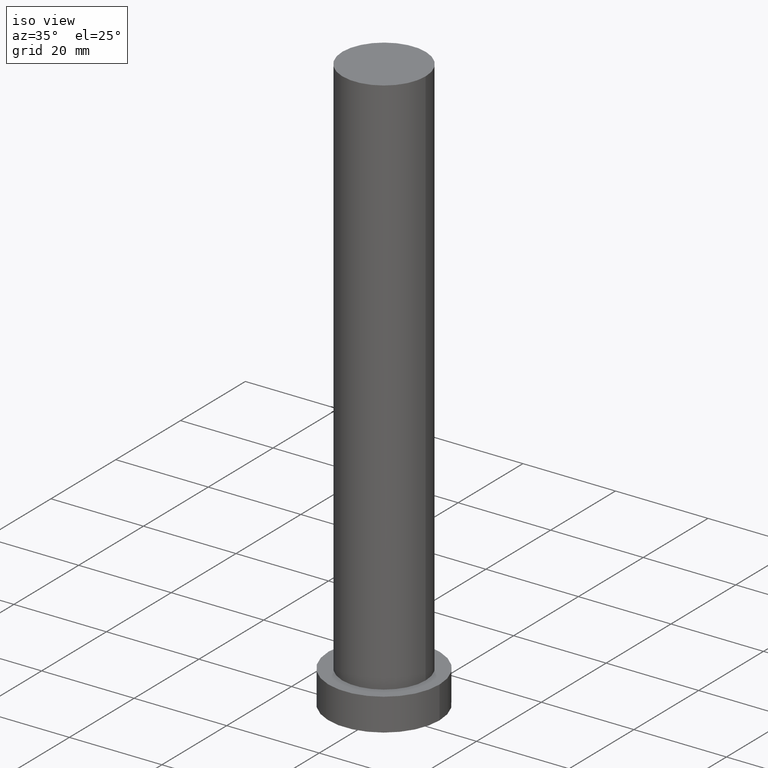
[diagram: clean part render]
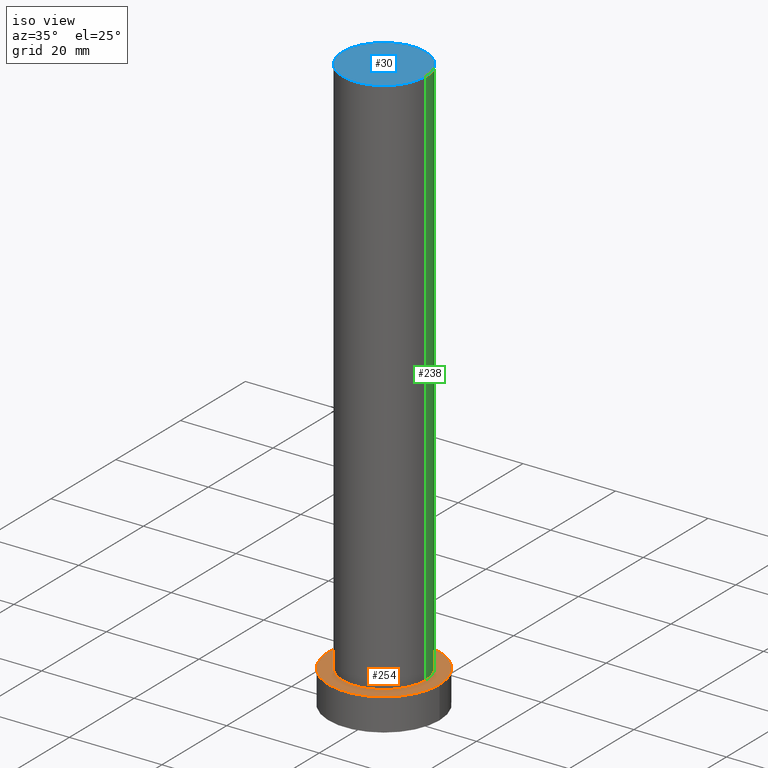
[diagram: same view with three faces highlighted in distinct colors, each labeled with its STEP entity id]
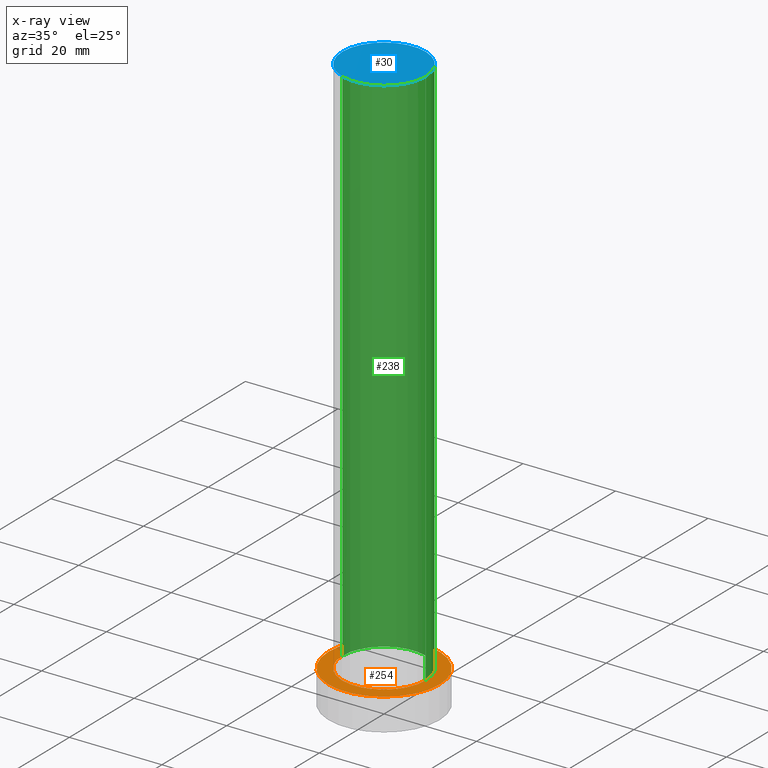
[diagram: x-ray of the same camera — body ghosted, the three highlighted faces saturated]
A machine part, iso view with three faces highlighted in distinct colors.
The next image is the same camera in x-ray (body ghosted, the three faces saturated) — at least one of them is partly hidden behind the body in this view.
Their STEP definitions:

[orange] entity #254 — the highlighted planar face has unit normal (0, 0, 1).
#11 = FACE_BOUND ( 'NONE', #110, .T. ) ;
#15 = CARTESIAN_POINT ( 'NONE',  ( 0.000000000000000000, 0.000000000000000000, 7.000000000000000000 ) ) ;
#22 = CIRCLE ( 'NONE', #98, 9.000000000000000000 ) ;
#26 = DIRECTION ( 'NONE',  ( 0.000000000000000000, 0.000000000000000000, 1.000000000000000000 ) ) ;
#27 = ORIENTED_EDGE ( 'NONE', *, *, #101, .F. ) ;
#31 = ORIENTED_EDGE ( 'NONE', *, *, #233, .T. ) ;
#36 = DIRECTION ( 'NONE',  ( 1.000000000000000000, 0.000000000000000000, 0.000000000000000000 ) ) ;
#38 = CIRCLE ( 'NONE', #179, 12.00000000000000178 ) ;
#44 = AXIS2_PLACEMENT_3D ( 'NONE', #66, #90, #200 ) ;
#49 = VERTEX_POINT ( 'NONE', #122 ) ;
#50 = AXIS2_PLACEMENT_3D ( 'NONE', #222, #26, #236 ) ;
#64 = CARTESIAN_POINT ( 'NONE',  ( -9.000000000000000000, 0.000000000000000000, 7.000000000000000000 ) ) ;
#66 = CARTESIAN_POINT ( 'NONE',  ( 0.000000000000000000, 0.000000000000000000, 7.000000000000000000 ) ) ;
#70 = PLANE ( 'NONE',  #50 ) ;
#71 = CARTESIAN_POINT ( 'NONE',  ( 0.000000000000000000, 0.000000000000000000, 7.000000000000000000 ) ) ;
#89 = EDGE_LOOP ( 'NONE', ( #137, #31 ) ) ;
#90 = DIRECTION ( 'NONE',  ( 0.000000000000000000, 0.000000000000000000, 1.000000000000000000 ) ) ;
#93 = DIRECTION ( 'NONE',  ( 0.000000000000000000, 0.000000000000000000, 1.000000000000000000 ) ) ;
#98 = AXIS2_PLACEMENT_3D ( 'NONE', #71, #119, #247 ) ;
#101 = EDGE_CURVE ( 'NONE', #237, #161, #22, .T. ) ;
#110 = EDGE_LOOP ( 'NONE', ( #198, #27 ) ) ;
#119 = DIRECTION ( 'NONE',  ( 0.000000000000000000, 0.000000000000000000, 1.000000000000000000 ) ) ;
#122 = CARTESIAN_POINT ( 'NONE',  ( 12.00000000000000178, 1.469576158976824144E-15, 7.000000000000000000 ) ) ;
#134 = VERTEX_POINT ( 'NONE', #203 ) ;
#135 = EDGE_CURVE ( 'NONE', #134, #49, #38, .T. ) ;
#137 = ORIENTED_EDGE ( 'NONE', *, *, #135, .T. ) ;
#145 = DIRECTION ( 'NONE',  ( 0.000000000000000000, 0.000000000000000000, 1.000000000000000000 ) ) ;
#148 = EDGE_CURVE ( 'NONE', #161, #237, #178, .T. ) ;
#161 = VERTEX_POINT ( 'NONE', #64 ) ;
#162 = CARTESIAN_POINT ( 'NONE',  ( 0.000000000000000000, 0.000000000000000000, 7.000000000000000000 ) ) ;
#178 = CIRCLE ( 'NONE', #44, 9.000000000000000000 ) ;
#179 = AXIS2_PLACEMENT_3D ( 'NONE', #15, #145, #36 ) ;
#180 = FACE_OUTER_BOUND ( 'NONE', #89, .T. ) ;
#184 = CARTESIAN_POINT ( 'NONE',  ( 9.000000000000000000, 1.102182119232617714E-15, 7.000000000000000000 ) ) ;
#194 = AXIS2_PLACEMENT_3D ( 'NONE', #162, #93, #195 ) ;
#195 = DIRECTION ( 'NONE',  ( 1.000000000000000000, 0.000000000000000000, 0.000000000000000000 ) ) ;
#198 = ORIENTED_EDGE ( 'NONE', *, *, #148, .F. ) ;
#200 = DIRECTION ( 'NONE',  ( 1.000000000000000000, 0.000000000000000000, 0.000000000000000000 ) ) ;
#203 = CARTESIAN_POINT ( 'NONE',  ( -12.00000000000000178, 0.000000000000000000, 7.000000000000000000 ) ) ;
#217 = CIRCLE ( 'NONE', #194, 12.00000000000000178 ) ;
#222 = CARTESIAN_POINT ( 'NONE',  ( 0.000000000000000000, 0.000000000000000000, 7.000000000000000000 ) ) ;
#233 = EDGE_CURVE ( 'NONE', #49, #134, #217, .T. ) ;
#236 = DIRECTION ( 'NONE',  ( 1.000000000000000000, 0.000000000000000000, -0.000000000000000000 ) ) ;
#237 = VERTEX_POINT ( 'NONE', #184 ) ;
#247 = DIRECTION ( 'NONE',  ( 1.000000000000000000, 0.000000000000000000, 0.000000000000000000 ) ) ;
#254 = ADVANCED_FACE ( 'NONE', ( #11, #180 ), #70, .T. ) ;

[blue] entity #30 — the highlighted planar face has unit normal (0, 0, 1).
#3 = AXIS2_PLACEMENT_3D ( 'NONE', #20, #223, #150 ) ;
#6 = EDGE_CURVE ( 'NONE', #165, #47, #76, .T. ) ;
#20 = CARTESIAN_POINT ( 'NONE',  ( 0.000000000000000000, 0.000000000000000000, 125.0000000000000000 ) ) ;
#30 = ADVANCED_FACE ( 'NONE', ( #188 ), #56, .T. ) ;
#32 = CIRCLE ( 'NONE', #104, 9.000000000000000000 ) ;
#46 = EDGE_CURVE ( 'NONE', #47, #165, #32, .T. ) ;
#47 = VERTEX_POINT ( 'NONE', #215 ) ;
#56 = PLANE ( 'NONE',  #3 ) ;
#74 = DIRECTION ( 'NONE',  ( 1.000000000000000000, 0.000000000000000000, 0.000000000000000000 ) ) ;
#76 = CIRCLE ( 'NONE', #109, 9.000000000000000000 ) ;
#80 = DIRECTION ( 'NONE',  ( 0.000000000000000000, 0.000000000000000000, 1.000000000000000000 ) ) ;
#104 = AXIS2_PLACEMENT_3D ( 'NONE', #249, #209, #74 ) ;
#109 = AXIS2_PLACEMENT_3D ( 'NONE', #186, #80, #231 ) ;
#138 = ORIENTED_EDGE ( 'NONE', *, *, #46, .T. ) ;
#150 = DIRECTION ( 'NONE',  ( 1.000000000000000000, 0.000000000000000000, -0.000000000000000000 ) ) ;
#165 = VERTEX_POINT ( 'NONE', #172 ) ;
#172 = CARTESIAN_POINT ( 'NONE',  ( -9.000000000000000000, 0.000000000000000000, 125.0000000000000000 ) ) ;
#186 = CARTESIAN_POINT ( 'NONE',  ( 0.000000000000000000, 0.000000000000000000, 125.0000000000000000 ) ) ;
#187 = EDGE_LOOP ( 'NONE', ( #221, #138 ) ) ;
#188 = FACE_OUTER_BOUND ( 'NONE', #187, .T. ) ;
#209 = DIRECTION ( 'NONE',  ( 0.000000000000000000, 0.000000000000000000, 1.000000000000000000 ) ) ;
#215 = CARTESIAN_POINT ( 'NONE',  ( 9.000000000000000000, 1.102182119232617714E-15, 125.0000000000000000 ) ) ;
#221 = ORIENTED_EDGE ( 'NONE', *, *, #6, .T. ) ;
#223 = DIRECTION ( 'NONE',  ( 0.000000000000000000, 0.000000000000000000, 1.000000000000000000 ) ) ;
#231 = DIRECTION ( 'NONE',  ( 1.000000000000000000, 0.000000000000000000, 0.000000000000000000 ) ) ;
#249 = CARTESIAN_POINT ( 'NONE',  ( 0.000000000000000000, 0.000000000000000000, 125.0000000000000000 ) ) ;

[green] entity #238 — the highlighted cylindrical surface (partial cylindrical patch) has radius 9 mm, axis along (-0, -0, -1).
#22 = CIRCLE ( 'NONE', #98, 9.000000000000000000 ) ;
#25 = EDGE_CURVE ( 'NONE', #47, #237, #92, .T. ) ;
#28 = CARTESIAN_POINT ( 'NONE',  ( -9.000000000000000000, 0.000000000000000000, 125.0000000000000000 ) ) ;
#29 = FACE_OUTER_BOUND ( 'NONE', #159, .T. ) ;
#32 = CIRCLE ( 'NONE', #104, 9.000000000000000000 ) ;
#46 = EDGE_CURVE ( 'NONE', #47, #165, #32, .T. ) ;
#47 = VERTEX_POINT ( 'NONE', #215 ) ;
#54 = CARTESIAN_POINT ( 'NONE',  ( 9.000000000000000000, 1.102182119232617714E-15, 125.0000000000000000 ) ) ;
#62 = VECTOR ( 'NONE', #97, 1000.000000000000000 ) ;
#64 = CARTESIAN_POINT ( 'NONE',  ( -9.000000000000000000, 0.000000000000000000, 7.000000000000000000 ) ) ;
#65 = ORIENTED_EDGE ( 'NONE', *, *, #25, .T. ) ;
#71 = CARTESIAN_POINT ( 'NONE',  ( 0.000000000000000000, 0.000000000000000000, 7.000000000000000000 ) ) ;
#74 = DIRECTION ( 'NONE',  ( 1.000000000000000000, 0.000000000000000000, 0.000000000000000000 ) ) ;
#92 = LINE ( 'NONE', #54, #62 ) ;
#97 = DIRECTION ( 'NONE',  ( -0.000000000000000000, -0.000000000000000000, -1.000000000000000000 ) ) ;
#98 = AXIS2_PLACEMENT_3D ( 'NONE', #71, #119, #247 ) ;
#101 = EDGE_CURVE ( 'NONE', #237, #161, #22, .T. ) ;
#104 = AXIS2_PLACEMENT_3D ( 'NONE', #249, #209, #74 ) ;
#105 = AXIS2_PLACEMENT_3D ( 'NONE', #220, #160, #114 ) ;
#111 = CYLINDRICAL_SURFACE ( 'NONE', #105, 9.000000000000000000 ) ;
#114 = DIRECTION ( 'NONE',  ( -1.000000000000000000, 0.000000000000000000, 0.000000000000000000 ) ) ;
#116 = LINE ( 'NONE', #28, #241 ) ;
#119 = DIRECTION ( 'NONE',  ( 0.000000000000000000, 0.000000000000000000, 1.000000000000000000 ) ) ;
#156 = ORIENTED_EDGE ( 'NONE', *, *, #101, .T. ) ;
#159 = EDGE_LOOP ( 'NONE', ( #253, #65, #156, #208 ) ) ;
#160 = DIRECTION ( 'NONE',  ( -0.000000000000000000, -0.000000000000000000, -1.000000000000000000 ) ) ;
#161 = VERTEX_POINT ( 'NONE', #64 ) ;
#165 = VERTEX_POINT ( 'NONE', #172 ) ;
#172 = CARTESIAN_POINT ( 'NONE',  ( -9.000000000000000000, 0.000000000000000000, 125.0000000000000000 ) ) ;
#184 = CARTESIAN_POINT ( 'NONE',  ( 9.000000000000000000, 1.102182119232617714E-15, 7.000000000000000000 ) ) ;
#206 = EDGE_CURVE ( 'NONE', #165, #161, #116, .T. ) ;
#208 = ORIENTED_EDGE ( 'NONE', *, *, #206, .F. ) ;
#209 = DIRECTION ( 'NONE',  ( 0.000000000000000000, 0.000000000000000000, 1.000000000000000000 ) ) ;
#215 = CARTESIAN_POINT ( 'NONE',  ( 9.000000000000000000, 1.102182119232617714E-15, 125.0000000000000000 ) ) ;
#220 = CARTESIAN_POINT ( 'NONE',  ( 0.000000000000000000, 0.000000000000000000, 125.0000000000000000 ) ) ;
#237 = VERTEX_POINT ( 'NONE', #184 ) ;
#238 = ADVANCED_FACE ( 'NONE', ( #29 ), #111, .T. ) ;
#241 = VECTOR ( 'NONE', #245, 1000.000000000000000 ) ;
#245 = DIRECTION ( 'NONE',  ( -0.000000000000000000, -0.000000000000000000, -1.000000000000000000 ) ) ;
#247 = DIRECTION ( 'NONE',  ( 1.000000000000000000, 0.000000000000000000, 0.000000000000000000 ) ) ;
#249 = CARTESIAN_POINT ( 'NONE',  ( 0.000000000000000000, 0.000000000000000000, 125.0000000000000000 ) ) ;
#253 = ORIENTED_EDGE ( 'NONE', *, *, #46, .F. ) ;